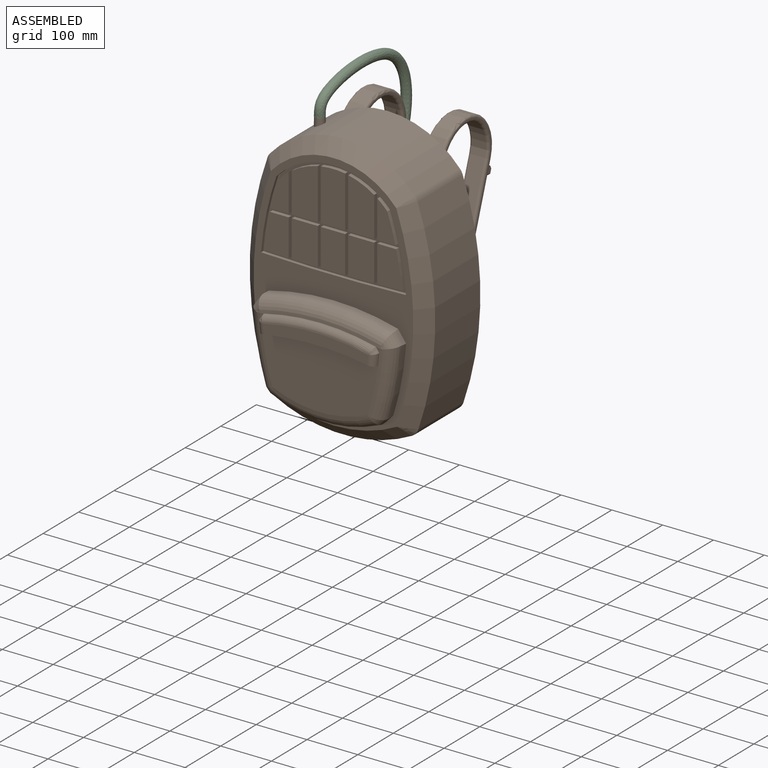
[diagram: assembled view]
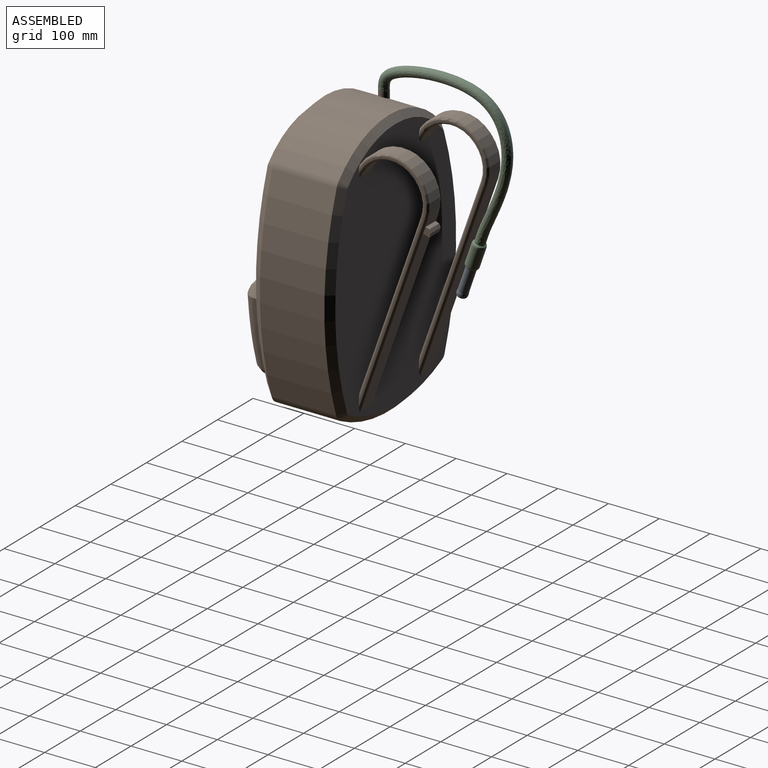
[diagram: assembled view, second angle]
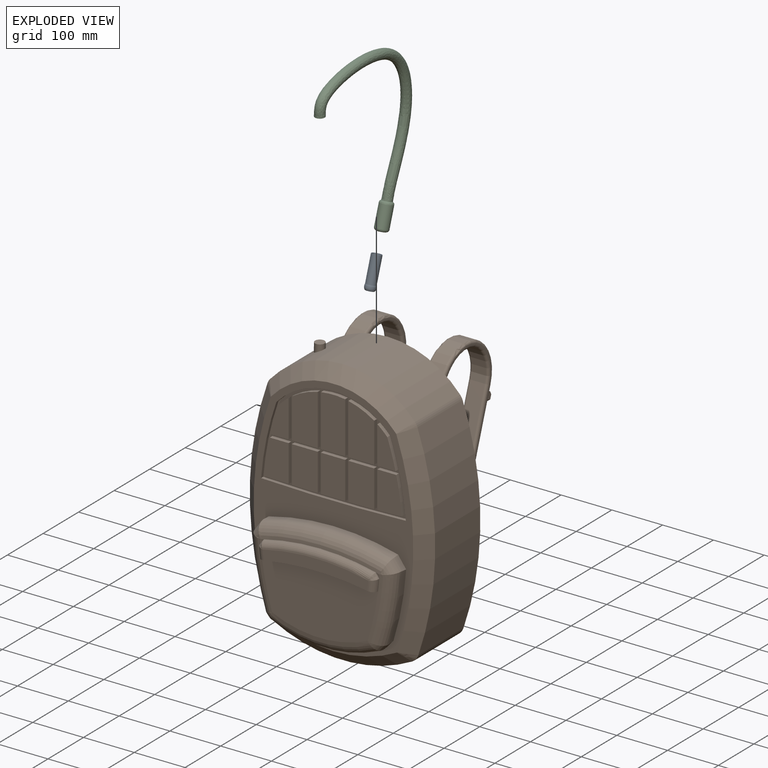
[diagram: exploded view]
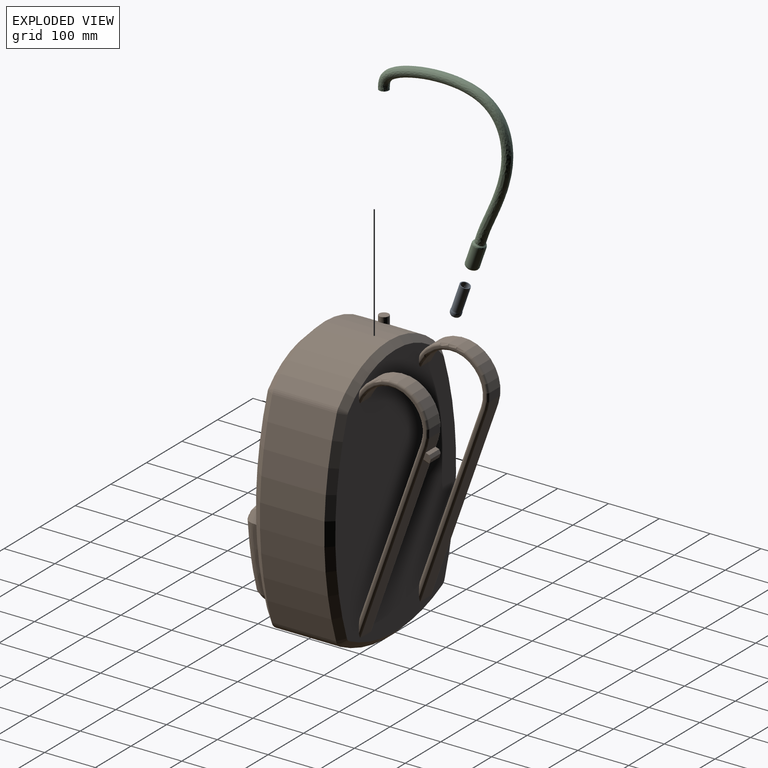
[diagram: exploded view, second angle]
ASSEMBLY  parts=3 mates=2
PART A: 6 faces, bbox 20.3x41x63.1 mm
  f0: cylinder r=9.53mm len=54.19mm, axis (0,0.4,0.92), area 3041.8mm2, adj f1,f2
  f1: plane 19.06x17.5mm, normal (0,0.4,0.92), area 81.6mm2, adj f0,f5
  f2: torus R=2.54mm, axis (0,0.4,0.92), area 195.1mm2, adj f0,f3
  f3: cylinder r=10.16mm len=20.32mm, axis (0,0.4,0.92), area 130.6mm2, adj f2,f4
  f4: torus R=2.54mm, axis (0,-0.4,-0.92), area 344.6mm2, adj f3,f5
  f5: cylinder r=8.05mm len=62.52mm, axis (0,-0.4,-0.92), area 3093.3mm2, adj f1,f4
PART B: 164 faces, bbox 371.2x364.6x533.2 mm
  f0: cylinder r=189.07mm len=285.7mm, axis (0,1,0), area 40812.4mm2, adj f16,f17,f23,f29,f162
  f1: plane 228.87x124.68mm, normal (0,-1,0), area 23984.9mm2, adj f147,f148,f150,f155
  f2: plane 285.09x196.1mm, normal (0,-1,0), area 10819.7mm2, adj f89,f90,f91,f92,f93,f94,f95,f96
  f3: plane 27.94x12.15mm, normal (0,0.94,-0.33), area 359.9mm2, adj f40,f49,f54,f75
  f4: cylinder r=61.55mm len=64.72mm, axis (-1,0,0), area 1939.6mm2, adj f5,f10,f65,f72
  f5: cylinder r=63.24mm len=79.02mm, axis (-1,0,0), area 2651.1mm2, adj f4,f6,f66,f73
  f6: plane 341.47x120.07mm, normal (0,-0.94,0.33), area 10113.3mm2, adj f5,f11,f67,f74
  f7: plane 375.55x132.05mm, normal (0,0.94,-0.33), area 11122.5mm2, adj f8,f11,f63,f68
  f8: cylinder r=75.94mm len=94.95mm, axis (-1,0,0), area 3188.1mm2, adj f7,f9,f62,f69
  f9: cylinder r=74.25mm len=90.43mm, axis (-1,0,0), area 2877.2mm2, adj f8,f11,f61,f70
  f10: cylinder r=87.31mm len=29.29mm, axis (-1,0,0), area 1011.2mm2, adj f4,f11,f64,f71
  f11: plane 507.79x345.78mm, normal (0,1,0), area 141665mm2, adj f6,f7,f9,f10,f20,f21,f22,f23
  f12: cylinder r=619.76mm len=405.32mm, axis (0,1,0), area 52440.9mm2, adj f16,f19,f20,f30
  f13: cylinder r=619.76mm len=405.32mm, axis (0,1,0), area 52440.9mm2, adj f17,f18,f27,f33
  f14: cylinder r=292.91mm len=274.36mm, axis (0,1,0), area 36261.9mm2, adj f18,f19,f24,f34
  f15: plane 476.31x314.3mm, normal (0,-1,0), area 31967.7mm2, adj f29,f30,f33,f34,f89,f90,f91,f92
  f16: cylinder r=25.4mm len=127mm, axis (0,1,0), area 1216.2mm2, adj f0,f12,f21,f28
  f17: cylinder r=25.4mm len=127mm, axis (0,1,0), area 1216.2mm2, adj f0,f13,f25,f31
  f18: cylinder r=25.4mm len=127mm, axis (0,1,0), area 2433.7mm2, adj f13,f14,f26,f35
  f19: cylinder r=25.4mm len=127mm, axis (0,1,0), area 2433.7mm2, adj f12,f14,f22,f32
  f20: cone r=619.76mm half-angle=45deg, axis (0,-1,0), area 7340.3mm2, adj f11,f12,f21,f22
  f21: cone r=12.7mm half-angle=45deg, axis (0,-1,0), area 129mm2, adj f11,f16,f20,f23
  f22: cone r=12.7mm half-angle=45deg, axis (0,-1,0), area 258.1mm2, adj f11,f19,f20,f24
  f23: cone r=189.07mm half-angle=45deg, axis (0,-1,0), area 5621.4mm2, adj f0,f11,f21,f25
  f24: cone r=292.91mm half-angle=45deg, axis (0,-1,0), area 5017mm2, adj f11,f14,f22,f26
  f25: cone r=12.7mm half-angle=45deg, axis (0,-1,0), area 129mm2, adj f11,f17,f23,f27
  f26: cone r=12.7mm half-angle=45deg, axis (0,-1,0), area 258.1mm2, adj f11,f18,f24,f27
  f27: cone r=619.76mm half-angle=45deg, axis (0,-1,0), area 7340.3mm2, adj f11,f13,f25,f26
  f28: cone r=25.4mm half-angle=45deg, axis (0,1,0), area 172mm2, adj f16,f29,f30
  f29: cone r=163.67mm half-angle=45deg, axis (0,1,0), area 10852.1mm2, adj f0,f15,f28,f31
  f30: cone r=594.36mm half-angle=45deg, axis (0,1,0), area 14528.6mm2, adj f12,f15,f28,f32
  f31: cone r=25.4mm half-angle=45deg, axis (0,1,0), area 172mm2, adj f17,f29,f33
  f32: cone r=25.4mm half-angle=45deg, axis (0,1,0), area 344.2mm2, adj f19,f30,f34
  f33: cone r=594.36mm half-angle=45deg, axis (0,1,0), area 14528.6mm2, adj f13,f15,f31,f35
  f34: cone r=267.51mm half-angle=45deg, axis (0,1,0), area 9811.7mm2, adj f14,f15,f32,f35
  f35: cone r=25.4mm half-angle=45deg, axis (0,1,0), area 344.2mm2, adj f18,f33,f34
  f36: cylinder r=61.55mm len=64.72mm, axis (-1,0,0), area 1939.6mm2, adj f37,f42,f51,f58
  f37: cylinder r=63.24mm len=79.02mm, axis (-1,0,0), area 2651.1mm2, adj f36,f38,f52,f59
  f38: plane 341.47x120.07mm, normal (0,-0.94,0.33), area 10113.3mm2, adj f11,f37,f53,f60
  f39: plane 350.22x123.14mm, normal (0,0.94,-0.33), area 10256.2mm2, adj f11,f49,f54,f77,f85,f87
  f40: cylinder r=75.94mm len=94.95mm, axis (-1,0,0), area 3188.1mm2, adj f3,f41,f48,f55
  f41: cylinder r=74.25mm len=90.43mm, axis (-1,0,0), area 2877.2mm2, adj f11,f40,f47,f56
  f42: cylinder r=87.31mm len=29.29mm, axis (-1,0,0), area 1011.2mm2, adj f11,f36,f50,f57
  f43: plane 455.52x131.27mm, normal (1,0,0), area 1481.1mm2, adj f11,f54,f55,f56,f57,f58,f59,f60
  f44: plane 455.52x131.27mm, normal (-1,0,0), area 1481.2mm2, adj f11,f68,f69,f70,f71,f72,f73,f74
  f45: plane 455.52x131.27mm, normal (1,0,0), area 1481.1mm2, adj f11,f61,f62,f63,f64,f65,f66,f67
  f46: plane 455.52x131.27mm, normal (-1,0,0), area 1481.2mm2, adj f11,f47,f48,f49,f50,f51,f52,f53
  f47: torus R=69.17mm, axis (1,0,0), area 837.6mm2, adj f11,f41,f46,f48
  f48: torus R=70.86mm, axis (1,0,0), area 888.2mm2, adj f40,f46,f47,f49
  f49: cylinder r=5.08mm len=377.23mm, axis (0,0.33,0.94), area 3118.9mm2, adj f3,f11,f39,f46,f48,f78
  f50: torus R=92.39mm, axis (1,0,0), area 254.6mm2, adj f11,f42,f46,f51
  f51: torus R=66.63mm, axis (1,0,0), area 570.8mm2, adj f36,f46,f50,f52
  f52: torus R=68.32mm, axis (1,0,0), area 779.5mm2, adj f37,f46,f51,f53
  f53: cylinder r=5.08mm len=356.79mm, axis (0,-0.33,-0.94), area 2946mm2, adj f11,f38,f46,f52
  f54: cylinder r=5.08mm len=377.23mm, axis (0,-0.33,-0.94), area 3118.9mm2, adj f3,f11,f39,f43,f55,f76
  f55: torus R=70.86mm, axis (1,0,0), area 888.2mm2, adj f40,f43,f54,f56
  f56: torus R=69.17mm, axis (1,0,0), area 837.6mm2, adj f11,f41,f43,f55
  f57: torus R=92.39mm, axis (1,0,0), area 254.6mm2, adj f11,f42,f43,f58
  f58: torus R=66.63mm, axis (1,0,0), area 570.8mm2, adj f36,f43,f57,f59
  f59: torus R=68.32mm, axis (1,0,0), area 779.5mm2, adj f37,f43,f58,f60
  f60: cylinder r=5.08mm len=356.79mm, axis (0,0.33,0.94), area 2946mm2, adj f11,f38,f43,f59
  f61: torus R=69.17mm, axis (-1,0,0), area 837.6mm2, adj f9,f11,f45,f62
  f62: torus R=70.86mm, axis (-1,0,0), area 888.2mm2, adj f8,f45,f61,f63
  f63: cylinder r=5.08mm len=377.23mm, axis (0,-0.33,-0.94), area 3118.9mm2, adj f7,f11,f45,f62
  f64: torus R=92.39mm, axis (-1,0,0), area 254.6mm2, adj f10,f11,f45,f65
  f65: torus R=66.63mm, axis (-1,0,0), area 570.8mm2, adj f4,f45,f64,f66
  f66: torus R=68.32mm, axis (-1,0,0), area 779.5mm2, adj f5,f45,f65,f67
  f67: cylinder r=5.08mm len=356.79mm, axis (0,0.33,0.94), area 2946mm2, adj f6,f11,f45,f66
  f68: cylinder r=5.08mm len=377.23mm, axis (0,0.33,0.94), area 3118.9mm2, adj f7,f11,f44,f69
  f69: torus R=70.86mm, axis (1,0,0), area 888.2mm2, adj f8,f44,f68,f70
  f70: torus R=69.17mm, axis (1,0,0), area 837.6mm2, adj f9,f11,f44,f69
  f71: torus R=92.39mm, axis (1,0,0), area 254.6mm2, adj f10,f11,f44,f72
  f72: torus R=66.63mm, axis (1,0,0), area 570.8mm2, adj f4,f44,f71,f73
  f73: torus R=68.32mm, axis (1,0,0), area 779.5mm2, adj f5,f44,f72,f74
  f74: cylinder r=5.08mm len=356.79mm, axis (0,-0.33,-0.94), area 2946mm2, adj f6,f11,f44,f73
  f75: plane 27.94x7.19mm, normal (0,0.33,0.94), area 212.9mm2, adj f3,f76,f78,f88
  f76: plane 17.39x14.93mm, normal (1,0,0), area 164.5mm2, adj f54,f75,f79,f85,f88
  f77: plane 17.78x3.55mm, normal (0,-0.33,-0.94), area 66.9mm2, adj f39,f81,f85,f87
  f78: plane 17.39x14.93mm, normal (-1,0,0), area 164.5mm2, adj f49,f75,f79,f87,f88
  f79: plane 27.94x8.39mm, normal (0,0.94,-0.33), area 248.4mm2, adj f76,f78,f86,f88
  f80: plane 16.5x9.94mm, normal (-1,0,0), area 78.7mm2, adj f81,f83,f84,f85
  f81: plane 21x16.77mm, normal (0,0.94,-0.33), area 370.6mm2, adj f77,f80,f82,f84,f85,f87
  f82: plane 17.33x10.23mm, normal (1,0,0), area 83mm2, adj f81,f83,f84,f87
  f83: plane 21x15.69mm, normal (0,-0.94,0.33), area 348.9mm2, adj f80,f82,f84,f85,f86,f87
  f84: plane 21x4.72mm, normal (0,-0.33,-0.94), area 105mm2, adj f80,f81,f82,f83
  f85: plane 13.67x6.62mm, normal (0.71,-0.23,-0.67), area 59.4mm2, adj f39,f76,f77,f80,f81,f83,f86
  f86: plane 27.94x5.02mm, normal (0,0.43,-0.9), area 133.6mm2, adj f79,f83,f85,f87
  f87: plane 13.67x6.62mm, normal (-0.71,-0.23,-0.67), area 65.6mm2, adj f39,f77,f78,f81,f82,f83,f86
  f88: plane 27.94x6.48mm, normal (0,0.9,0.43), area 200.7mm2, adj f75,f76,f78,f79
  f89: cylinder r=3801.82mm len=285.09mm, axis (0,-1,0), area 1810.8mm2, adj f2,f15,f90,f92
  f90: cylinder r=581.66mm len=143.05mm, axis (0,-1,0), area 930.7mm2, adj f2,f15,f89,f91
  f91: cylinder r=150.97mm len=224.97mm, axis (0,-1,0), area 1611.8mm2, adj f2,f15,f90,f92
  f92: cylinder r=581.66mm len=143.26mm, axis (0,-1,0), area 932mm2, adj f2,f15,f89,f91
  f93: cylinder r=144.62mm len=19.6mm, axis (0,1,0), area 202.5mm2, adj f2,f94,f96,f97
  f94: cylinder r=575.31mm len=56.15mm, axis (0,1,0), area 445.4mm2, adj f2,f93,f95,f97
  f95: plane 35.75x7.62mm, normal (0,0,-1), area 272.4mm2, adj f2,f94,f96,f97
  f96: plane 74.04x7.62mm, normal (1,0,0), area 564.2mm2, adj f2,f93,f95,f97
  f97: plane 74.04x35.75mm, normal (0,-1,0), area 1769mm2, adj f93,f94,f95,f96
  f98: plane 37.19x7.62mm, normal (0,0,1), area 283.4mm2, adj f2,f99,f101,f102
  f99: cylinder r=575.31mm len=71.36mm, axis (0,1,0), area 550.7mm2, adj f2,f98,f100,f102
  f100: cylinder r=3795.47mm len=48.35mm, axis (0,1,0), area 368.6mm2, adj f2,f99,f101,f102
  f101: plane 72.75x7.62mm, normal (1,0,0), area 554.3mm2, adj f2,f98,f100,f102
  f102: plane 72.75x48.35mm, normal (0,-1,0), area 3142.8mm2, adj f98,f99,f100,f101
  f103: cylinder r=575.31mm len=56.15mm, axis (0,1,0), area 445.4mm2, adj f2,f104,f106,f107
  f104: cylinder r=144.62mm len=19.6mm, axis (0,1,0), area 202.5mm2, adj f2,f103,f105,f107
  f105: plane 74.04x7.62mm, normal (-1,0,0), area 564.2mm2, adj f2,f104,f106,f107
  f106: plane 35.75x7.62mm, normal (0,0,-1), area 272.4mm2, adj f2,f103,f105,f107
  f107: plane 74.04x35.75mm, normal (0,-1,0), area 1769mm2, adj f103,f104,f105,f106
  f108: plane 78.59x7.62mm, normal (1,0,0), area 598.8mm2, adj f2,f109,f111,f112
  f109: cylinder r=144.62mm len=50.8mm, axis (0,1,0), area 423.2mm2, adj f2,f108,f110,f112
  f110: plane 100.19x7.62mm, normal (-1,0,0), area 763.4mm2, adj f2,f109,f111,f112
  f111: plane 50.8x7.62mm, normal (0,0,-1), area 387.1mm2, adj f2,f108,f110,f112
  f112: plane 100.19x50.8mm, normal (0,-1,0), area 4638.9mm2, adj f108,f109,f110,f111
  f113: plane 101.39x7.62mm, normal (1,0,0), area 772.6mm2, adj f2,f114,f116,f117
  f114: cylinder r=144.62mm len=47.6mm, axis (0,1,0), area 364.4mm2, adj f2,f113,f115,f117
  f115: plane 101.39x7.62mm, normal (-1,0,0), area 772.6mm2, adj f2,f114,f116,f117
  f116: plane 47.6x7.62mm, normal (0,0,-1), area 362.7mm2, adj f2,f113,f115,f117
  f117: plane 103.37x47.6mm, normal (0,-1,0), area 4889.2mm2, adj f113,f114,f115,f116
  f118: plane 100.19x7.62mm, normal (1,0,0), area 763.4mm2, adj f2,f119,f121,f122
  f119: cylinder r=144.62mm len=50.8mm, axis (0,1,0), area 423.2mm2, adj f2,f118,f120,f122
  f120: plane 78.59x7.62mm, normal (-1,0,0), area 598.8mm2, adj f2,f119,f121,f122
  f121: plane 50.8x7.62mm, normal (0,0,-1), area 387.1mm2, adj f2,f118,f120,f122
  f122: plane 100.19x50.8mm, normal (0,-1,0), area 4638.9mm2, adj f118,f119,f120,f121
  f123: plane 50.8x7.62mm, normal (0,0,1), area 387.1mm2, adj f2,f124,f126,f127
  f124: plane 73.55x7.62mm, normal (-1,0,0), area 560.4mm2, adj f2,f123,f125,f127
  f125: cylinder r=3795.47mm len=50.8mm, axis (0,1,0), area 387.1mm2, adj f2,f124,f126,f127
  f126: plane 72.77x7.62mm, normal (1,0,0), area 554.5mm2, adj f2,f123,f125,f127
  f127: plane 73.55x50.8mm, normal (0,-1,0), area 3719.3mm2, adj f123,f124,f125,f126
  f128: plane 72.62x7.62mm, normal (-1,0,0), area 553.4mm2, adj f2,f129,f131,f132
  f129: cylinder r=3795.47mm len=48.33mm, axis (0,1,0), area 368.5mm2, adj f2,f128,f130,f132
  f130: cylinder r=575.31mm len=71.17mm, axis (0,1,0), area 549.3mm2, adj f2,f129,f131,f132
  f131: plane 37.19x7.62mm, normal (0,0,1), area 283.4mm2, adj f2,f128,f130,f132
  f132: plane 72.62x48.33mm, normal (0,-1,0), area 3135.2mm2, adj f128,f129,f130,f131
  f133: plane 50.8x7.62mm, normal (0,0,1), area 387.1mm2, adj f2,f134,f136,f137
  f134: plane 72.88x7.62mm, normal (-1,0,0), area 555.4mm2, adj f2,f133,f135,f137
  f135: cylinder r=3795.47mm len=50.8mm, axis (0,1,0), area 387.1mm2, adj f2,f134,f136,f137
  f136: plane 73.59x7.62mm, normal (1,0,0), area 560.8mm2, adj f2,f133,f135,f137
  f137: plane 73.59x50.8mm, normal (0,-1,0), area 3723.3mm2, adj f133,f134,f135,f136
  f138: plane 47.6x7.62mm, normal (0,0,1), area 362.7mm2, adj f2,f139,f141,f142
  f139: plane 73.63x7.62mm, normal (-1,0,0), area 561.1mm2, adj f2,f138,f140,f142
  f140: cylinder r=3795.47mm len=47.6mm, axis (0,1,0), area 362.7mm2, adj f2,f139,f141,f142
  f141: plane 73.6x7.62mm, normal (1,0,0), area 560.8mm2, adj f2,f138,f140,f142
  f142: plane 73.69x47.6mm, normal (0,-1,0), area 3506.5mm2, adj f138,f139,f140,f141
  f143: cylinder r=581.66mm len=137.08mm, axis (0,1,0), area 1751.8mm2, adj f15,f150,f151,f153
  f144: cylinder r=491.64mm len=257.26mm, axis (0,1,0), area 3286.9mm2, adj f15,f149,f153,f154
  f145: cylinder r=581.66mm len=137.08mm, axis (0,1,0), area 1751.8mm2, adj f15,f147,f152,f154
  f146: cylinder r=254.81mm len=213.9mm, axis (0,1,0), area 2774.8mm2, adj f15,f148,f151,f152
  f147: torus R=556.26mm, axis (0,-1,0), area 5360.6mm2, adj f1,f145,f149,f152,f154,f158,f161
  f148: torus R=229.41mm, axis (0,-1,0), area 8384.7mm2, adj f1,f146,f151,f152
  f149: torus R=466.24mm, axis (0,-1,0), area 10032.8mm2, adj f144,f147,f150,f153,f154,f159,f160,f161
  f150: torus R=556.26mm, axis (0,-1,0), area 5360.5mm2, adj f1,f143,f149,f151,f153,f157,f160
  f151: bspline ~38.1x25.17mm, area 492.1mm2, adj f15,f143,f146,f148,f150
  f152: bspline ~38.1x25.17mm, area 492.1mm2, adj f15,f145,f146,f147,f148
  f153: bspline ~38.1x26.75mm, area 951mm2, adj f15,f143,f144,f149,f150
  f154: bspline ~38.1x26.75mm, area 951mm2, adj f15,f144,f145,f147,f149
  f155: cylinder r=593.44mm len=228.87mm, axis (0,1,0), area 2855.6mm2, adj f1,f156,f157,f158
  f156: plane 208.01x30.82mm, normal (0,-1,0), area 4340mm2, adj f155,f157,f158,f159
  f157: torus R=543.56mm, axis (0,-1,0), area 419.8mm2, adj f150,f155,f156,f160
  f158: torus R=543.56mm, axis (0,-1,0), area 419.8mm2, adj f147,f155,f156,f161
  f159: torus R=453.54mm, axis (0,-1,0), area 4323.9mm2, adj f149,f156,f160,f161
  f160: bspline ~13.87x13.07mm, area 100.9mm2, adj f149,f150,f157,f159
  f161: bspline ~13.87x13.07mm, area 100.9mm2, adj f147,f149,f158,f159
  f162: cylinder r=9.53mm len=19.67mm, axis (0,0,-1), area 880.6mm2, adj f0,f163
  f163: plane 19.05x19.05mm, normal (0,0,1), area 285mm2, adj f162
PART C: 7 faces, bbox 38.1x258.2x339.5 mm
  f0: plane 19.05x19mm, normal (0,-0.07,-1), area 285mm2, adj f1
  f1: bspline ~293.18x258.15mm, area 30380.8mm2, adj f0,f3
  f2: cylinder r=12.7mm len=47.72mm, axis (0,0.4,0.92), area 3272.5mm2, adj f3,f4
  f3: bspline ~25.38x23.72mm, area 438.9mm2, adj f1,f2
  f4: torus R=7.62mm, axis (0,-0.4,-0.92), area 522.9mm2, adj f2,f5
  f5: cylinder r=8.05mm len=19.81mm, axis (0,-0.4,-0.92), area 641.6mm2, adj f4,f6
  f6: plane 16.1x14.79mm, normal (0,-0.4,-0.92), area 203.7mm2, adj f5
PLACE A rot(axis=(1,0,0),4.2deg) t=(-285.48,161.95,394.35)mm
PLACE B t=(-200.75,40.68,-46.34)mm
PLACE C rot(axis=(1,0,0),4.2deg) t=(-285.48,161.41,392.8)mm
MATE cylindrical C.f0 <-> B.f162  axis (0,0,-1) through (-285.48,-41.81,436.26)mm
MATE cylindrical A.f3 <-> C.f2  axis (0,0.33,0.94) through (-285.48,131.28,167.24)mm
